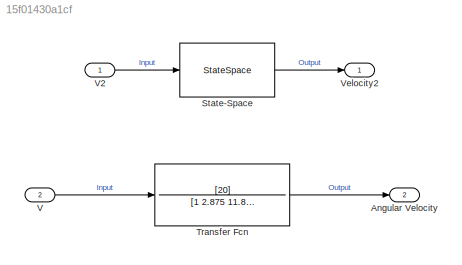
MODEL slx_15f01430a1cf
KIND model
CONFIG AbsTol = auto
CONFIG EnableMultiTasking = off
CONFIG FixedStep = auto
CONFIG MaxStep = auto
CONFIG MinStep = auto
CONFIG RelTol = 1e-3
CONFIG SampleTimeConstraint = Unconstrained
CONFIG SolverName = VariableStepAuto
CONFIG StartTime = 0.0
CONFIG StopTime = 10.0
BLOCK [Outport] Angular Velocity
  Port = 2
BLOCK [StateSpace] State-Space
  A = [-1 16; -0.625 -1.875]
  B = [0; 1.25]
  C = [1 0]
  ContinuousStateAttributes = 'velocity'
  D = 0
  InitialCondition = 0
  Ports = [1, 1]
BLOCK [TransferFcn] Transfer Fcn
  Denominator = [1 2.875 11.87]
  Numerator = [20]
BLOCK [Inport] V
  Port = 2
BLOCK [Inport] V2
BLOCK [Outport] Velocity2
LINE State-Space:1 -> Velocity2:1
LINE Transfer Fcn:1 -> Angular Velocity:1
LINE V2:1 -> State-Space:1
LINE V:1 -> Transfer Fcn:1
